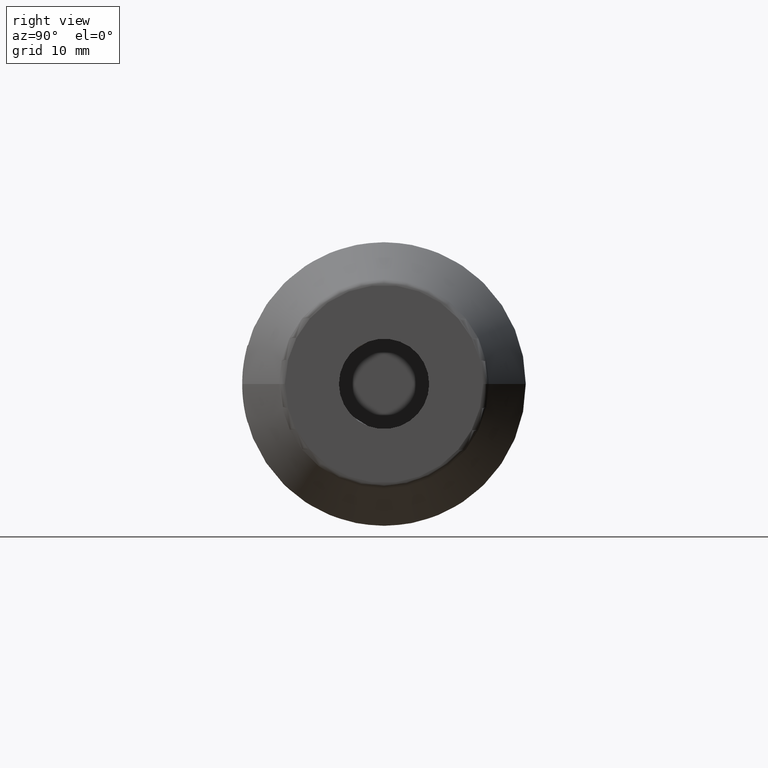
[diagram: clean part render]
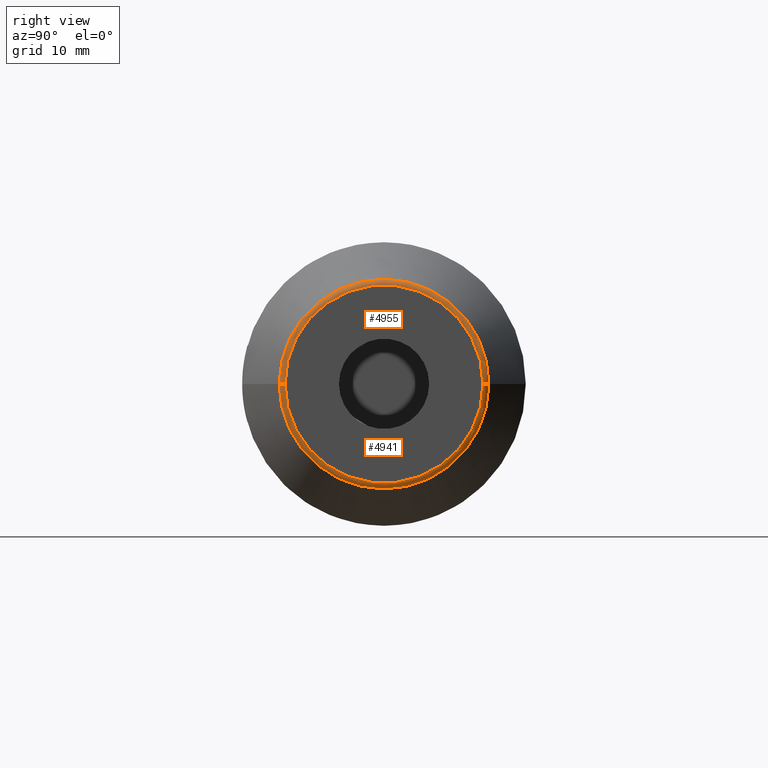
[diagram: same view with one multi-face feature highlighted, each face labeled with its STEP entity id]
A machine part, right view. The highlighted faces form ONE feature: a constant-radius fillet chain: 2 tangent blend faces with common blend radius 1 mm. The faces share edges in the B-rep.
Their STEP definitions:
[1] entity #4955 (Torus):
#1472=CARTESIAN_POINT('',(7.4E1,1.536292973919E1,7.506648080913E-12));
#1473=DIRECTION('',(0.E0,4.886208625210E-13,-1.E0));
#1474=DIRECTION('',(4.226182617409E-1,9.063077870366E-1,4.428408926113E-13));
#1475=AXIS2_PLACEMENT_3D('',#1472,#1473,#1474);
#1477=CARTESIAN_POINT('',(7.4E1,-1.536292973919E1,-7.506779919897E-12));
#1478=DIRECTION('',(0.E0,-4.886295361384E-13,1.E0));
#1479=DIRECTION('',(4.226182617409E-1,-9.063077870366E-1,-4.428487535783E-13));
#1480=AXIS2_PLACEMENT_3D('',#1477,#1478,#1479);
#1482=CARTESIAN_POINT('',(7.442261826174E1,0.E0,0.E0));
#1483=DIRECTION('',(-1.E0,0.E0,0.E0));
#1484=DIRECTION('',(0.E0,-1.E0,0.E0));
#1485=AXIS2_PLACEMENT_3D('',#1482,#1483,#1484);
#1507=CARTESIAN_POINT('',(7.5E1,0.E0,0.E0));
#1508=DIRECTION('',(-1.E0,0.E0,0.E0));
#1509=DIRECTION('',(0.E0,-1.E0,0.E0));
#1510=AXIS2_PLACEMENT_3D('',#1507,#1508,#1509);
#3385=CARTESIAN_POINT('',(7.442261826174E1,1.626923752623E1,0.E0));
#3386=CARTESIAN_POINT('',(7.442261826174E1,-1.626923752623E1,0.E0));
#3387=VERTEX_POINT('',#3385);
#3388=VERTEX_POINT('',#3386);
#3389=CARTESIAN_POINT('',(7.5E1,1.536292973919E1,-1.397091051141E-14));
#3390=CARTESIAN_POINT('',(7.5E1,-1.536292973919E1,1.208949423835E-14));
#3391=VERTEX_POINT('',#3389);
#3392=VERTEX_POINT('',#3390);
#4942=CARTESIAN_POINT('',(7.4E1,0.E0,0.E0));
#4943=DIRECTION('',(1.E0,0.E0,0.E0));
#4944=DIRECTION('',(0.E0,-9.999924306834E-1,-3.890832288253E-3));
#4945=AXIS2_PLACEMENT_3D('',#4942,#4943,#4944);
#4946=TOROIDAL_SURFACE('',#4945,1.536292973919E1,1.E0);
#4948=ORIENTED_EDGE('',*,*,#4947,.T.);
#4949=ORIENTED_EDGE('',*,*,#4937,.T.);
#4951=ORIENTED_EDGE('',*,*,#4950,.F.);
#4952=ORIENTED_EDGE('',*,*,#4933,.F.);
#4953=EDGE_LOOP('',(#4948,#4949,#4951,#4952));
#4954=FACE_OUTER_BOUND('',#4953,.F.);
#4955=ADVANCED_FACE('',(#4954),#4946,.T.);
#1476=CIRCLE('',#1475,1.E0);
#1481=CIRCLE('',#1480,1.E0);
#1486=CIRCLE('',#1485,1.626923752623E1);
#1511=CIRCLE('',#1510,1.536292973919E1);
#4933=EDGE_CURVE('',#3388,#3392,#1481,.T.);
#4937=EDGE_CURVE('',#3387,#3391,#1476,.T.);
#4947=EDGE_CURVE('',#3388,#3387,#1486,.T.);
#4950=EDGE_CURVE('',#3392,#3391,#1511,.T.);
[2] entity #4941 (Torus):
#1454=CARTESIAN_POINT('',(7.442261826174E1,0.E0,0.E0));
#1455=DIRECTION('',(-1.E0,0.E0,0.E0));
#1456=DIRECTION('',(0.E0,1.E0,0.E0));
#1457=AXIS2_PLACEMENT_3D('',#1454,#1455,#1456);
#1472=CARTESIAN_POINT('',(7.4E1,1.536292973919E1,7.506648080913E-12));
#1473=DIRECTION('',(0.E0,4.886208625210E-13,-1.E0));
#1474=DIRECTION('',(4.226182617409E-1,9.063077870366E-1,4.428408926113E-13));
#1475=AXIS2_PLACEMENT_3D('',#1472,#1473,#1474);
#1477=CARTESIAN_POINT('',(7.4E1,-1.536292973919E1,-7.506779919897E-12));
#1478=DIRECTION('',(0.E0,-4.886295361384E-13,1.E0));
#1479=DIRECTION('',(4.226182617409E-1,-9.063077870366E-1,-4.428487535783E-13));
#1480=AXIS2_PLACEMENT_3D('',#1477,#1478,#1479);
#1502=CARTESIAN_POINT('',(7.5E1,0.E0,0.E0));
#1503=DIRECTION('',(-1.E0,0.E0,0.E0));
#1504=DIRECTION('',(0.E0,1.E0,0.E0));
#1505=AXIS2_PLACEMENT_3D('',#1502,#1503,#1504);
#3385=CARTESIAN_POINT('',(7.442261826174E1,1.626923752623E1,0.E0));
#3386=CARTESIAN_POINT('',(7.442261826174E1,-1.626923752623E1,0.E0));
#3387=VERTEX_POINT('',#3385);
#3388=VERTEX_POINT('',#3386);
#3389=CARTESIAN_POINT('',(7.5E1,1.536292973919E1,-1.397091051141E-14));
#3390=CARTESIAN_POINT('',(7.5E1,-1.536292973919E1,1.208949423835E-14));
#3391=VERTEX_POINT('',#3389);
#3392=VERTEX_POINT('',#3390);
#4927=CARTESIAN_POINT('',(7.4E1,0.E0,0.E0));
#4928=DIRECTION('',(1.E0,0.E0,0.E0));
#4929=DIRECTION('',(0.E0,9.999924306834E-1,3.890832288253E-3));
#4930=AXIS2_PLACEMENT_3D('',#4927,#4928,#4929);
#4931=TOROIDAL_SURFACE('',#4930,1.536292973919E1,1.E0);
#4932=ORIENTED_EDGE('',*,*,#4917,.T.);
#4934=ORIENTED_EDGE('',*,*,#4933,.T.);
#4936=ORIENTED_EDGE('',*,*,#4935,.F.);
#4938=ORIENTED_EDGE('',*,*,#4937,.F.);
#4939=EDGE_LOOP('',(#4932,#4934,#4936,#4938));
#4940=FACE_OUTER_BOUND('',#4939,.F.);
#4941=ADVANCED_FACE('',(#4940),#4931,.T.);
#1458=CIRCLE('',#1457,1.626923752623E1);
#1476=CIRCLE('',#1475,1.E0);
#1481=CIRCLE('',#1480,1.E0);
#1506=CIRCLE('',#1505,1.536292973919E1);
#4917=EDGE_CURVE('',#3387,#3388,#1458,.T.);
#4933=EDGE_CURVE('',#3388,#3392,#1481,.T.);
#4935=EDGE_CURVE('',#3391,#3392,#1506,.T.);
#4937=EDGE_CURVE('',#3387,#3391,#1476,.T.);